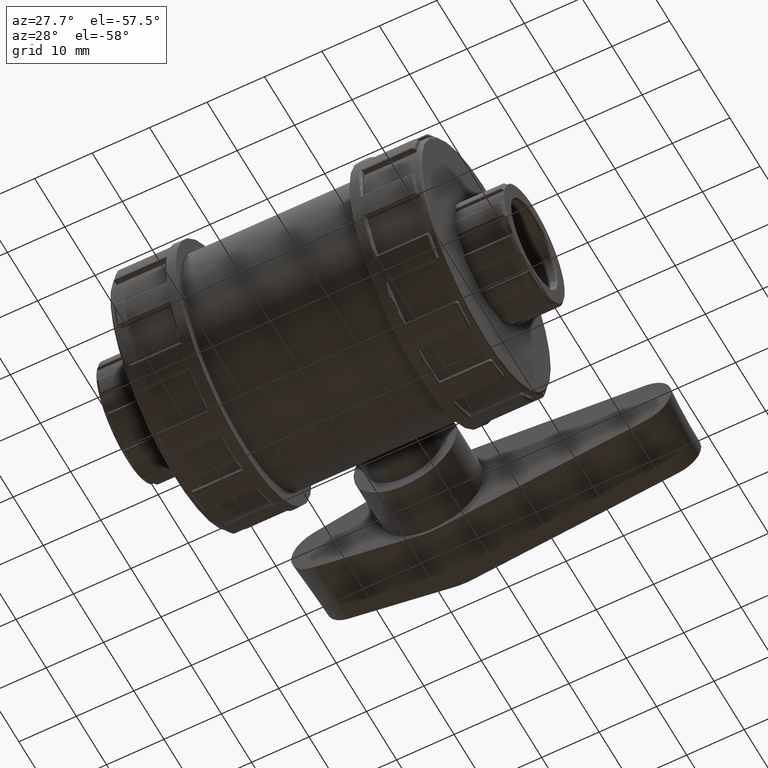
[diagram: clean part render]
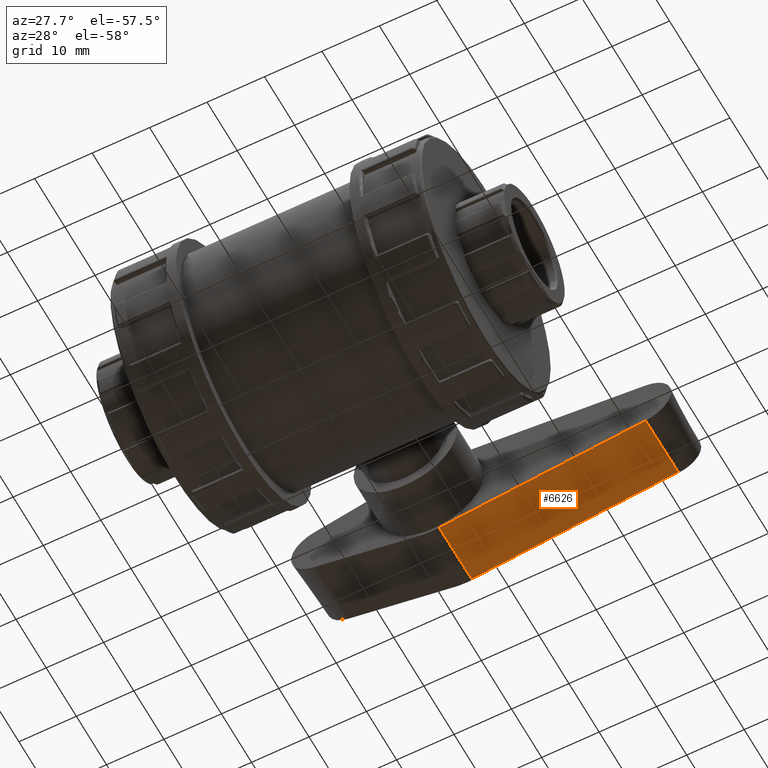
[diagram: same view with one face highlighted and labeled with its STEP entity id]
A machine part, auxiliary view. The second image highlights one B-rep face of the part: STEP entity #6626.
In plain terms, the highlighted planar face has unit normal (0.1231, 0.0523, -0.991).
Its self-contained STEP definition (entity closure, byte-faithful):
#226=PLANE('',#7079);
#429=FACE_OUTER_BOUND('',#863,.T.);
#863=EDGE_LOOP('',(#4357,#4358,#4359,#4360));
#1317=LINE('',#10331,#1713);
#1322=LINE('',#10361,#1718);
#1324=LINE('',#10367,#1720);
#1325=LINE('',#10368,#1721);
#1713=VECTOR('',#8029,36.2215405525497);
#1718=VECTOR('',#8066,10.9816984870289);
#1720=VECTOR('',#8072,10.9816984870289);
#1721=VECTOR('',#8073,36.2215405525497);
#2629=VERTEX_POINT('',#10321);
#2631=VERTEX_POINT('',#10327);
#2641=VERTEX_POINT('',#10360);
#2643=VERTEX_POINT('',#10366);
#3278=EDGE_CURVE('',#2629,#2631,#1317,.T.);
#3293=EDGE_CURVE('',#2631,#2641,#1322,.T.);
#3296=EDGE_CURVE('',#2629,#2643,#1324,.T.);
#3297=EDGE_CURVE('',#2643,#2641,#1325,.T.);
#4357=ORIENTED_EDGE('',*,*,#3278,.F.);
#4358=ORIENTED_EDGE('',*,*,#3296,.T.);
#4359=ORIENTED_EDGE('',*,*,#3297,.T.);
#4360=ORIENTED_EDGE('',*,*,#3293,.F.);
#6626=ADVANCED_FACE('',(#429),#226,.T.);
#7079=AXIS2_PLACEMENT_3D('',#10365,#8070,#8071);
#8029=DIRECTION('',(-0.992370974042457,-3.03825984231959E-16,-0.123287671232877));
#8066=DIRECTION('',(0.00645237816693861,-0.998629534754574,-0.0519366838742536));
#8070=DIRECTION('center_axis',(0.123118709764263,0.0523359562429439,-0.991010964111962));
#8071=DIRECTION('ref_axis',(0.992370974042457,0.,0.123287671232877));
#8072=DIRECTION('',(0.00645237816693868,-0.998629534754574,-0.0519366838742536));
#8073=DIRECTION('',(-0.992370974042457,-3.03825984231959E-16,-0.123287671232877));
#10321=CARTESIAN_POINT('',(37.0566253209451,44.7166484509167,-4.48040591893114));
#10327=CARTESIAN_POINT('',(1.11141984149308,44.7166484509167,-8.9460753021222));
#10331=CARTESIAN_POINT('',(19.0840225812191,44.7166484509167,-6.71324061052667));
#10360=CARTESIAN_POINT('',(1.18227791304668,33.75,-9.51642830484539));
#10361=CARTESIAN_POINT('',(1.10958904109589,45.,-8.93133876638211));
#10365=CARTESIAN_POINT('Origin',(37.0547945205479,45.,-4.46566938319105));
#10366=CARTESIAN_POINT('',(37.1274833924987,33.75,-5.05075892165434));
#10367=CARTESIAN_POINT('',(37.0547945205479,45.,-4.46566938319105));
#10368=CARTESIAN_POINT('',(37.1274833924987,33.75,-5.05075892165433));